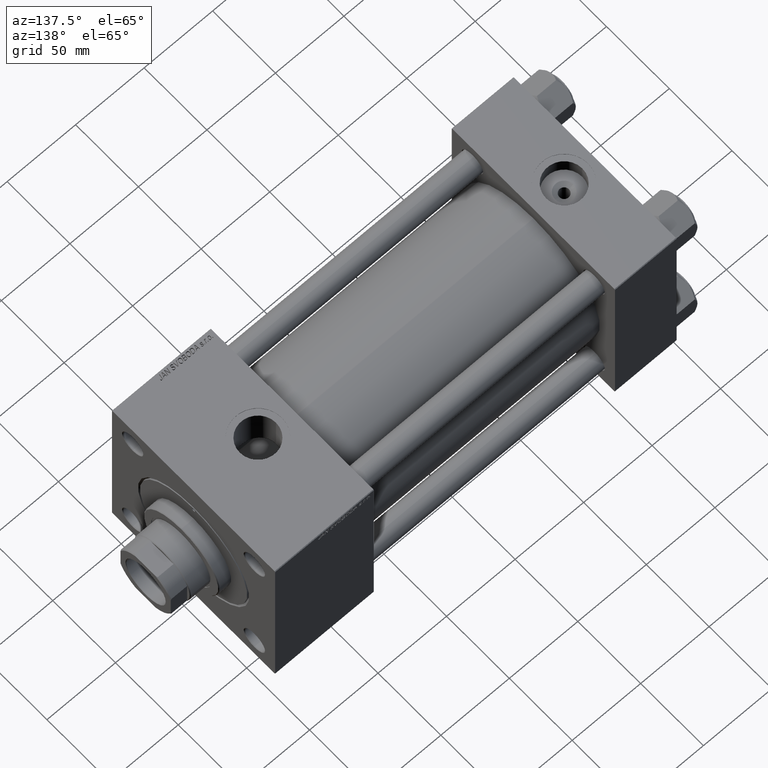
[diagram: clean part render]
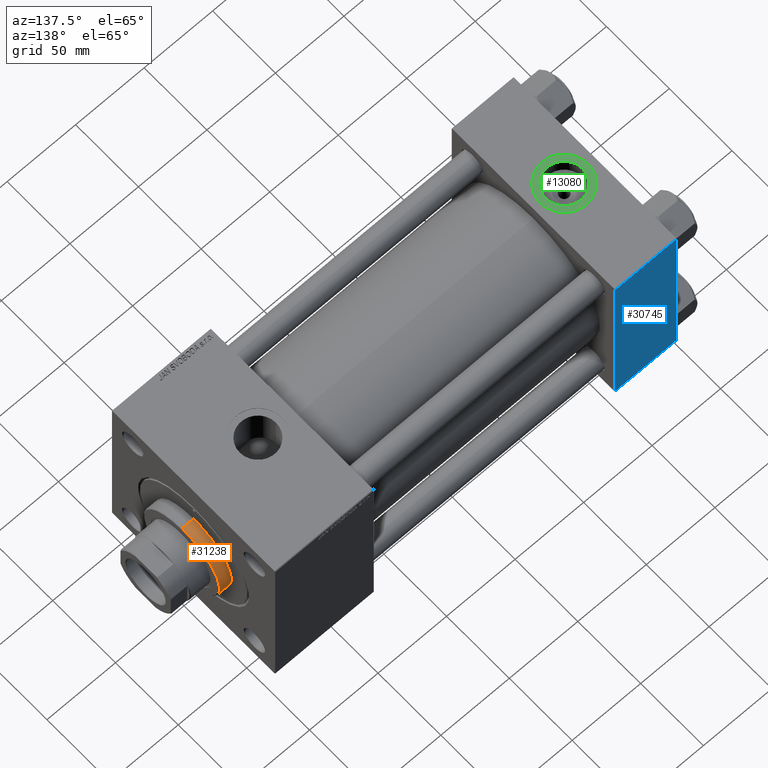
[diagram: same view with three faces highlighted in distinct colors, each labeled with its STEP entity id]
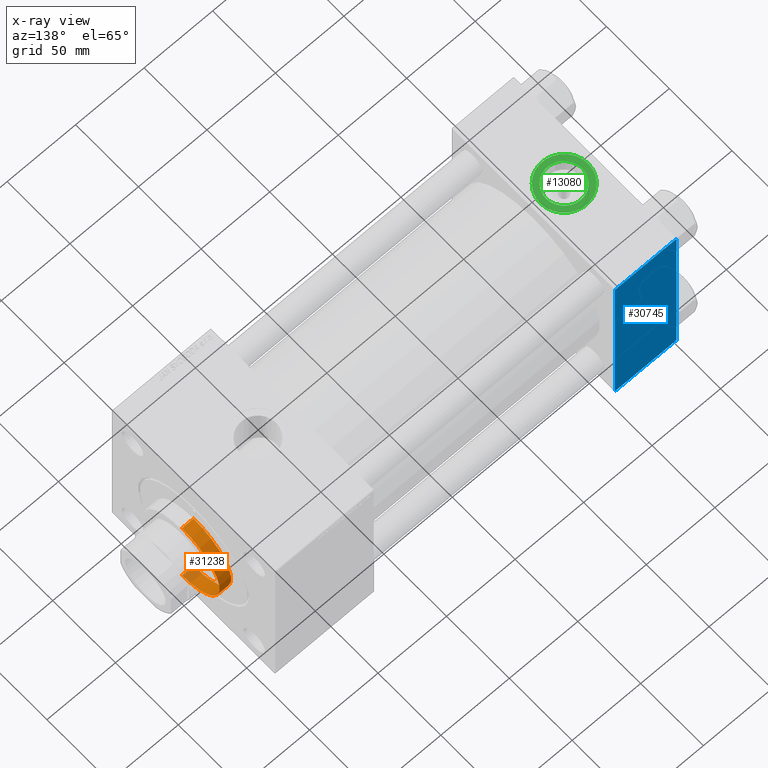
[diagram: x-ray of the same camera — body ghosted, the three highlighted faces saturated]
A machine part, auxiliary view with three faces highlighted in distinct colors.
The next image is the same camera in x-ray (body ghosted, the three faces saturated) — at least one of them is partly hidden behind the body in this view.
Their STEP definitions:

[orange] entity #31238 — the highlighted cylindrical surface (partial cylindrical patch) has radius 30 mm, axis along (-1, -0, -0).
#18 = CARTESIAN_POINT ( 'NONE',  ( 30.00000000000000000, 3.673940397442059178E-15, 28.69999999999999929 ) ) ;
#1894 = CARTESIAN_POINT ( 'NONE',  ( 0.000000000000000000, 0.000000000000000000, 37.69999999999999574 ) ) ;
#2322 = CARTESIAN_POINT ( 'NONE',  ( 30.00000000000000000, 3.673940397442059178E-15, 37.69999999999999574 ) ) ;
#2434 = AXIS2_PLACEMENT_3D ( 'NONE', #1894, #17596, #25549 ) ;
#2833 = EDGE_CURVE ( 'NONE', #27926, #27655, #15066, .T. ) ;
#3430 = CIRCLE ( 'NONE', #11636, 30.00000000000000000 ) ;
#4489 = DIRECTION ( 'NONE',  ( -0.000000000000000000, -0.000000000000000000, -1.000000000000000000 ) ) ;
#4905 = ORIENTED_EDGE ( 'NONE', *, *, #42278, .F. ) ;
#5752 = FACE_OUTER_BOUND ( 'NONE', #32849, .T. ) ;
#6185 = CARTESIAN_POINT ( 'NONE',  ( -30.00000000000000000, 0.000000000000000000, 37.19999999999998863 ) ) ;
#10204 = LINE ( 'NONE', #27619, #16491 ) ;
#10297 = LINE ( 'NONE', #2322, #23169 ) ;
#11636 = AXIS2_PLACEMENT_3D ( 'NONE', #19411, #42788, #35060 ) ;
#15066 = CIRCLE ( 'NONE', #50355, 30.00000000000000000 ) ;
#15637 = DIRECTION ( 'NONE',  ( 1.000000000000000000, 0.000000000000000000, 0.000000000000000000 ) ) ;
#16491 = VECTOR ( 'NONE', #4489, 1000.000000000000000 ) ;
#17596 = DIRECTION ( 'NONE',  ( -0.000000000000000000, -0.000000000000000000, -1.000000000000000000 ) ) ;
#18760 = DIRECTION ( 'NONE',  ( 0.000000000000000000, 0.000000000000000000, 1.000000000000000000 ) ) ;
#19411 = CARTESIAN_POINT ( 'NONE',  ( 0.000000000000000000, 0.000000000000000000, 37.19999999999998863 ) ) ;
#20622 = CARTESIAN_POINT ( 'NONE',  ( -30.00000000000000000, 0.000000000000000000, 28.69999999999999929 ) ) ;
#23169 = VECTOR ( 'NONE', #32896, 1000.000000000000000 ) ;
#25549 = DIRECTION ( 'NONE',  ( -1.000000000000000000, 0.000000000000000000, 0.000000000000000000 ) ) ;
#26529 = ORIENTED_EDGE ( 'NONE', *, *, #45618, .T. ) ;
#27619 = CARTESIAN_POINT ( 'NONE',  ( -30.00000000000000000, 0.000000000000000000, 37.69999999999999574 ) ) ;
#27655 = VERTEX_POINT ( 'NONE', #20622 ) ;
#27926 = VERTEX_POINT ( 'NONE', #18 ) ;
#30374 = ORIENTED_EDGE ( 'NONE', *, *, #44729, .T. ) ;
#31238 = ADVANCED_FACE ( 'NONE', ( #5752 ), #32982, .T. ) ;
#32176 = VERTEX_POINT ( 'NONE', #40374 ) ;
#32849 = EDGE_LOOP ( 'NONE', ( #30374, #26529, #33424, #4905 ) ) ;
#32896 = DIRECTION ( 'NONE',  ( -0.000000000000000000, -0.000000000000000000, -1.000000000000000000 ) ) ;
#32982 = CYLINDRICAL_SURFACE ( 'NONE', #2434, 30.00000000000000000 ) ;
#33424 = ORIENTED_EDGE ( 'NONE', *, *, #2833, .T. ) ;
#35060 = DIRECTION ( 'NONE',  ( 1.000000000000000000, 0.000000000000000000, 0.000000000000000000 ) ) ;
#38281 = CARTESIAN_POINT ( 'NONE',  ( 0.000000000000000000, 0.000000000000000000, 28.69999999999999929 ) ) ;
#39546 = VERTEX_POINT ( 'NONE', #6185 ) ;
#40374 = CARTESIAN_POINT ( 'NONE',  ( 30.00000000000000000, 3.673940397442059178E-15, 37.19999999999998863 ) ) ;
#42278 = EDGE_CURVE ( 'NONE', #39546, #27655, #10204, .T. ) ;
#42788 = DIRECTION ( 'NONE',  ( 0.000000000000000000, 0.000000000000000000, -1.000000000000000000 ) ) ;
#44729 = EDGE_CURVE ( 'NONE', #39546, #32176, #3430, .T. ) ;
#45618 = EDGE_CURVE ( 'NONE', #32176, #27926, #10297, .T. ) ;
#50355 = AXIS2_PLACEMENT_3D ( 'NONE', #38281, #18760, #15637 ) ;

[blue] entity #30745 — the highlighted planar face has unit normal (0, 1, 0).
#62 = ORIENTED_EDGE ( 'NONE', *, *, #39493, .T. ) ;
#310 = VECTOR ( 'NONE', #29114, 1000.000000000000000 ) ;
#1184 = ORIENTED_EDGE ( 'NONE', *, *, #1665, .F. ) ;
#1665 = EDGE_CURVE ( 'NONE', #42615, #9255, #24927, .T. ) ;
#1788 = DIRECTION ( 'NONE',  ( 0.000000000000000000, 0.000000000000000000, -1.000000000000000000 ) ) ;
#2076 = LINE ( 'NONE', #5672, #8996 ) ;
#2108 = CARTESIAN_POINT ( 'NONE',  ( 45.00000000000000000, 65.00000000000000000, -64.49999999999995737 ) ) ;
#3290 = DIRECTION ( 'NONE',  ( 0.000000000000000000, -0.000000000000000000, 1.000000000000000000 ) ) ;
#3463 = EDGE_CURVE ( 'NONE', #42615, #8987, #49142, .T. ) ;
#5421 = DIRECTION ( 'NONE',  ( -1.000000000000000000, 0.000000000000000000, 0.000000000000000000 ) ) ;
#5672 = CARTESIAN_POINT ( 'NONE',  ( 45.00000000000000000, 65.00000000000000000, -64.49999999999995737 ) ) ;
#7146 = FACE_OUTER_BOUND ( 'NONE', #40913, .T. ) ;
#8790 = CARTESIAN_POINT ( 'NONE',  ( 0.000000000000000000, 65.00000000000000000, 64.49999999999998579 ) ) ;
#8987 = VERTEX_POINT ( 'NONE', #13751 ) ;
#8996 = VECTOR ( 'NONE', #5421, 1000.000000000000000 ) ;
#9255 = VERTEX_POINT ( 'NONE', #38634 ) ;
#10686 = VERTEX_POINT ( 'NONE', #2108 ) ;
#13177 = CARTESIAN_POINT ( 'NONE',  ( 45.00000000000000000, 65.00000000000000000, 64.49999999999998579 ) ) ;
#13751 = CARTESIAN_POINT ( 'NONE',  ( 45.00000000000000000, 65.00000000000000000, 64.49999999999998579 ) ) ;
#13935 = AXIS2_PLACEMENT_3D ( 'NONE', #26933, #27177, #3290 ) ;
#17226 = CARTESIAN_POINT ( 'NONE',  ( 0.000000000000000000, 65.00000000000000000, 65.00000000000001421 ) ) ;
#20750 = VECTOR ( 'NONE', #1788, 1000.000000000000000 ) ;
#22043 = EDGE_CURVE ( 'NONE', #8987, #10686, #50434, .T. ) ;
#22825 = PLANE ( 'NONE',  #13935 ) ;
#24927 = LINE ( 'NONE', #17226, #20750 ) ;
#26933 = CARTESIAN_POINT ( 'NONE',  ( 45.00000000000000000, 65.00000000000000000, 65.00000000000001421 ) ) ;
#27177 = DIRECTION ( 'NONE',  ( -0.000000000000000000, 1.000000000000000000, 0.000000000000000000 ) ) ;
#29114 = DIRECTION ( 'NONE',  ( 1.000000000000000000, 0.000000000000000000, 0.000000000000000000 ) ) ;
#30745 = ADVANCED_FACE ( 'NONE', ( #7146 ), #22825, .T. ) ;
#36023 = ORIENTED_EDGE ( 'NONE', *, *, #3463, .T. ) ;
#38122 = DIRECTION ( 'NONE',  ( 0.000000000000000000, 0.000000000000000000, -1.000000000000000000 ) ) ;
#38634 = CARTESIAN_POINT ( 'NONE',  ( 0.000000000000000000, 65.00000000000000000, -64.49999999999995737 ) ) ;
#39493 = EDGE_CURVE ( 'NONE', #10686, #9255, #2076, .T. ) ;
#40913 = EDGE_LOOP ( 'NONE', ( #50605, #62, #1184, #36023 ) ) ;
#42615 = VERTEX_POINT ( 'NONE', #8790 ) ;
#46822 = CARTESIAN_POINT ( 'NONE',  ( 45.00000000000000000, 65.00000000000000000, 65.00000000000001421 ) ) ;
#48920 = VECTOR ( 'NONE', #38122, 1000.000000000000000 ) ;
#49142 = LINE ( 'NONE', #13177, #310 ) ;
#50434 = LINE ( 'NONE', #46822, #48920 ) ;
#50605 = ORIENTED_EDGE ( 'NONE', *, *, #22043, .T. ) ;

[green] entity #13080 — the highlighted planar face has unit normal (0, 0, 1).
#52 = VERTEX_POINT ( 'NONE', #24462 ) ;
#1637 = AXIS2_PLACEMENT_3D ( 'NONE', #23451, #8266, #3917 ) ;
#2028 = EDGE_CURVE ( 'NONE', #52, #31000, #16719, .T. ) ;
#2818 = DIRECTION ( 'NONE',  ( 0.000000000000000000, 0.000000000000000000, 1.000000000000000000 ) ) ;
#3917 = DIRECTION ( 'NONE',  ( 1.000000000000000000, 0.000000000000000000, 0.000000000000000000 ) ) ;
#4231 = DIRECTION ( 'NONE',  ( 0.000000000000000000, 0.000000000000000000, 1.000000000000000000 ) ) ;
#6120 = PLANE ( 'NONE',  #24047 ) ;
#6377 = DIRECTION ( 'NONE',  ( 0.000000000000000000, 0.000000000000000000, 1.000000000000000000 ) ) ;
#7314 = ORIENTED_EDGE ( 'NONE', *, *, #27203, .T. ) ;
#8266 = DIRECTION ( 'NONE',  ( 0.000000000000000000, 0.000000000000000000, 1.000000000000000000 ) ) ;
#12924 = CIRCLE ( 'NONE', #41677, 17.50000000000000000 ) ;
#13080 = ADVANCED_FACE ( 'NONE', ( #45190, #25917 ), #6120, .T. ) ;
#16714 = ORIENTED_EDGE ( 'NONE', *, *, #42326, .T. ) ;
#16719 = CIRCLE ( 'NONE', #33120, 13.22000000000000242 ) ;
#17476 = ORIENTED_EDGE ( 'NONE', *, *, #2028, .F. ) ;
#17804 = VERTEX_POINT ( 'NONE', #47556 ) ;
#17960 = CARTESIAN_POINT ( 'NONE',  ( 22.50000000000000000, -8.673617379884035472E-15, 64.79999999999999716 ) ) ;
#18508 = DIRECTION ( 'NONE',  ( 1.000000000000000000, 0.000000000000000000, 0.000000000000000000 ) ) ;
#20595 = CIRCLE ( 'NONE', #39436, 17.50000000000000000 ) ;
#21701 = CARTESIAN_POINT ( 'NONE',  ( 4.999999999999997335, -6.530485481376167224E-15, 64.79999999999999716 ) ) ;
#22054 = DIRECTION ( 'NONE',  ( 1.000000000000000000, 0.000000000000000000, -0.000000000000000000 ) ) ;
#22604 = CARTESIAN_POINT ( 'NONE',  ( 22.50000000000000000, -8.673617379884035472E-15, 64.79999999999999716 ) ) ;
#23451 = CARTESIAN_POINT ( 'NONE',  ( 22.50000000000000000, -8.673617379884035472E-15, 64.79999999999999716 ) ) ;
#24047 = AXIS2_PLACEMENT_3D ( 'NONE', #17960, #6377, #22054 ) ;
#24462 = CARTESIAN_POINT ( 'NONE',  ( 35.71999999999999886, -8.673617379884035472E-15, 64.79999999999999716 ) ) ;
#25856 = ORIENTED_EDGE ( 'NONE', *, *, #37433, .F. ) ;
#25917 = FACE_OUTER_BOUND ( 'NONE', #28829, .T. ) ;
#26605 = VERTEX_POINT ( 'NONE', #21701 ) ;
#27203 = EDGE_CURVE ( 'NONE', #26605, #17804, #12924, .T. ) ;
#27886 = CIRCLE ( 'NONE', #1637, 13.22000000000000242 ) ;
#28829 = EDGE_LOOP ( 'NONE', ( #16714, #7314 ) ) ;
#30740 = DIRECTION ( 'NONE',  ( 0.000000000000000000, 0.000000000000000000, 1.000000000000000000 ) ) ;
#31000 = VERTEX_POINT ( 'NONE', #31462 ) ;
#31462 = CARTESIAN_POINT ( 'NONE',  ( 9.279999999999994031, -7.054634311411234321E-15, 64.79999999999999716 ) ) ;
#33120 = AXIS2_PLACEMENT_3D ( 'NONE', #34331, #30740, #42562 ) ;
#34331 = CARTESIAN_POINT ( 'NONE',  ( 22.50000000000000000, -8.673617379884035472E-15, 64.79999999999999716 ) ) ;
#37433 = EDGE_CURVE ( 'NONE', #31000, #52, #27886, .T. ) ;
#39432 = DIRECTION ( 'NONE',  ( 1.000000000000000000, 0.000000000000000000, 0.000000000000000000 ) ) ;
#39436 = AXIS2_PLACEMENT_3D ( 'NONE', #46649, #4231, #39432 ) ;
#41553 = EDGE_LOOP ( 'NONE', ( #17476, #25856 ) ) ;
#41677 = AXIS2_PLACEMENT_3D ( 'NONE', #22604, #2818, #18508 ) ;
#42326 = EDGE_CURVE ( 'NONE', #17804, #26605, #20595, .T. ) ;
#42562 = DIRECTION ( 'NONE',  ( 1.000000000000000000, 0.000000000000000000, 0.000000000000000000 ) ) ;
#45190 = FACE_BOUND ( 'NONE', #41553, .T. ) ;
#46649 = CARTESIAN_POINT ( 'NONE',  ( 22.50000000000000000, -8.673617379884035472E-15, 64.79999999999999716 ) ) ;
#47556 = CARTESIAN_POINT ( 'NONE',  ( 40.00000000000000000, -8.673617379884035472E-15, 64.79999999999999716 ) ) ;